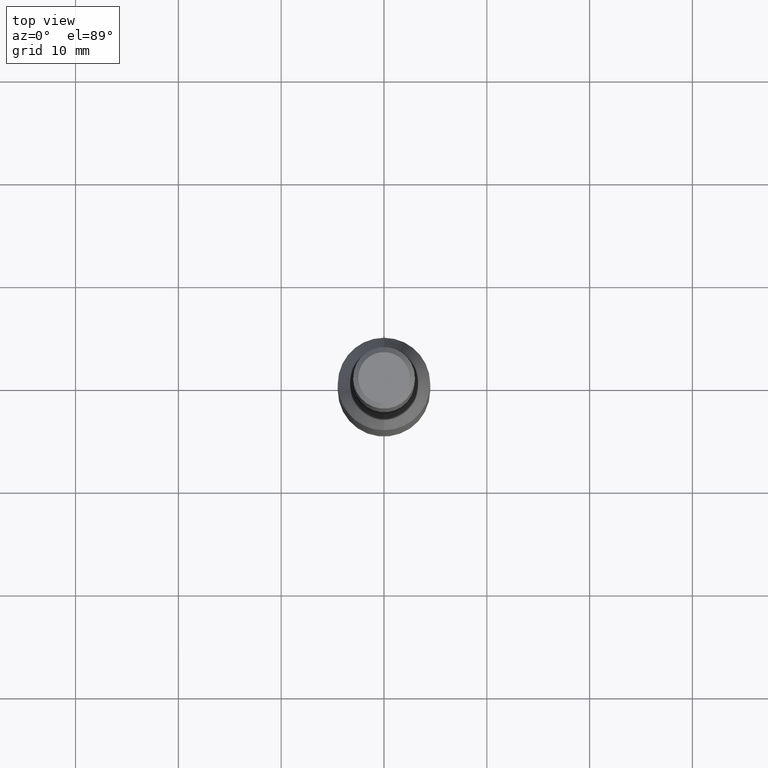
[diagram: clean part render]
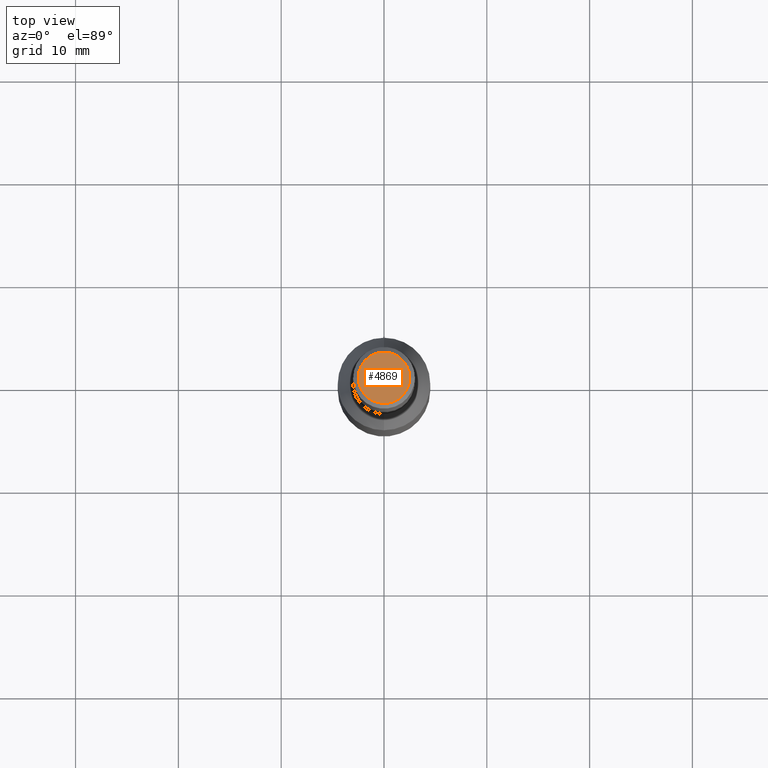
[diagram: same view with one face highlighted and labeled with its STEP entity id]
A machine part, top view. The second image highlights one B-rep face of the part: STEP entity #4869.
In plain terms, the highlighted planar face has unit normal (0, 0, 1).
Its self-contained STEP definition (entity closure, byte-faithful):
#788 = CARTESIAN_POINT ( 'NONE',  ( 2.499999999999995100, 3.367778697655218500E-016, 70.00000000000000000 ) ) ;
#1307 = ORIENTED_EDGE ( 'NONE', *, *, #6328, .T. ) ;
#1546 = DIRECTION ( 'NONE',  ( 1.000000000000000000, 0.0000000000000000000, 0.0000000000000000000 ) ) ;
#1630 = DIRECTION ( 'NONE',  ( 0.0000000000000000000, 0.0000000000000000000, 1.000000000000000000 ) ) ;
#1631 = PLANE ( 'NONE',  #8900 ) ;
#2663 = DIRECTION ( 'NONE',  ( 1.000000000000000000, 0.0000000000000000000, -0.0000000000000000000 ) ) ;
#3237 = DIRECTION ( 'NONE',  ( 0.0000000000000000000, 0.0000000000000000000, 1.000000000000000000 ) ) ;
#3590 = DIRECTION ( 'NONE',  ( 0.0000000000000000000, 0.0000000000000000000, 1.000000000000000000 ) ) ;
#3639 = CARTESIAN_POINT ( 'NONE',  ( 0.0000000000000000000, 0.0000000000000000000, 70.00000000000000000 ) ) ;
#4334 = EDGE_LOOP ( 'NONE', ( #8290, #1307 ) ) ;
#4638 = CARTESIAN_POINT ( 'NONE',  ( 0.0000000000000000000, 0.0000000000000000000, 70.00000000000000000 ) ) ;
#4869 = ADVANCED_FACE ( 'NONE', ( #12779 ), #1631, .T. ) ;
#5346 = DIRECTION ( 'NONE',  ( 1.000000000000000000, 0.0000000000000000000, 0.0000000000000000000 ) ) ;
#5604 = CARTESIAN_POINT ( 'NONE',  ( -2.499999999999995100, 0.0000000000000000000, 70.00000000000000000 ) ) ;
#6186 = CARTESIAN_POINT ( 'NONE',  ( 0.0000000000000000000, 0.0000000000000000000, 70.00000000000000000 ) ) ;
#6328 = EDGE_CURVE ( 'NONE', #6602, #11788, #11484, .T. ) ;
#6602 = VERTEX_POINT ( 'NONE', #788 ) ;
#7245 = EDGE_CURVE ( 'NONE', #11788, #6602, #9543, .T. ) ;
#8290 = ORIENTED_EDGE ( 'NONE', *, *, #7245, .T. ) ;
#8900 = AXIS2_PLACEMENT_3D ( 'NONE', #3639, #3590, #2663 ) ;
#9324 = AXIS2_PLACEMENT_3D ( 'NONE', #4638, #1630, #1546 ) ;
#9543 = CIRCLE ( 'NONE', #12228, 2.499999999999995100 ) ;
#11484 = CIRCLE ( 'NONE', #9324, 2.499999999999995100 ) ;
#11788 = VERTEX_POINT ( 'NONE', #5604 ) ;
#12228 = AXIS2_PLACEMENT_3D ( 'NONE', #6186, #3237, #5346 ) ;
#12779 = FACE_OUTER_BOUND ( 'NONE', #4334, .T. ) ;